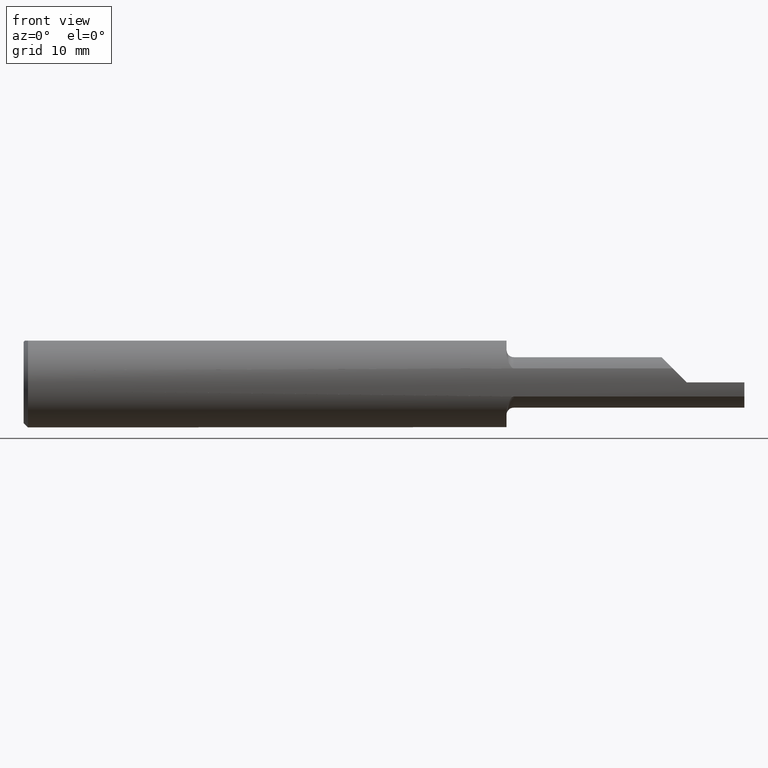
[diagram: clean part render]
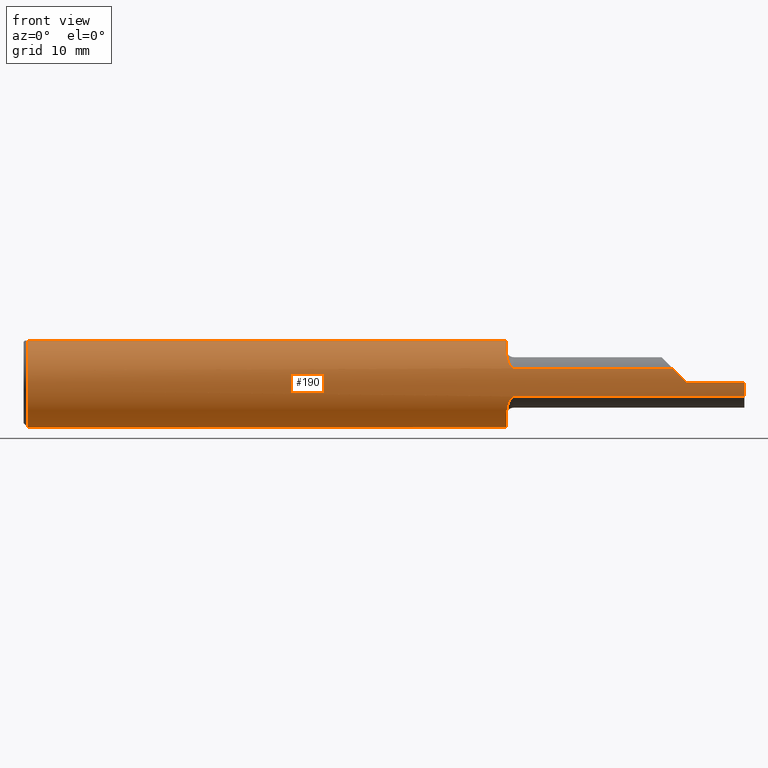
[diagram: same view with one face highlighted and labeled with its STEP entity id]
A machine part, front view. The second image highlights one B-rep face of the part: STEP entity #190.
In plain terms, the highlighted cylindrical surface (partial cylindrical patch) has radius 3.9649 mm, axis along (-1, -0, -0).
Its self-contained STEP definition (entity closure, byte-faithful):
#1 = DIRECTION ( 'NONE',  ( 0.000000000000000000, 0.000000000000000000, -1.000000000000000000 ) ) ;
#5 = ORIENTED_EDGE ( 'NONE', *, *, #807, .T. ) ;
#6 = AXIS2_PLACEMENT_3D ( 'NONE', #224, #498, #1 ) ;
#9 = DIRECTION ( 'NONE',  ( -1.000000000000000000, -0.000000000000000000, -0.000000000000000000 ) ) ;
#11 = ORIENTED_EDGE ( 'NONE', *, *, #45, .F. ) ;
#23 = CARTESIAN_POINT ( 'NONE',  ( 1.693177178722074183, -0.1472468593966860251, -0.05183574833930117143 ) ) ;
#27 = CARTESIAN_POINT ( 'NONE',  ( 1.690079856500521727, -0.1460410296156850751, 0.05517908519247215204 ) ) ;
#40 = ORIENTED_EDGE ( 'NONE', *, *, #284, .T. ) ;
#45 = EDGE_CURVE ( 'NONE', #175, #474, #919, .T. ) ;
#53 = DIRECTION ( 'NONE',  ( 1.000000000000000000, 0.000000000000000000, 0.000000000000000000 ) ) ;
#54 = ORIENTED_EDGE ( 'NONE', *, *, #639, .T. ) ;
#74 = DIRECTION ( 'NONE',  ( -1.000000000000000000, -0.000000000000000000, -0.000000000000000000 ) ) ;
#75 = ORIENTED_EDGE ( 'NONE', *, *, #632, .F. ) ;
#77 = CARTESIAN_POINT ( 'NONE',  ( 2.251340690561190794, -0.1483222222222220776, 0.04865930943880889675 ) ) ;
#81 = CARTESIAN_POINT ( 'NONE',  ( 2.058749999999999858, -0.1483222222222221054, 0.04865930943880881349 ) ) ;
#82 = AXIS2_PLACEMENT_3D ( 'NONE', #917, #53, #344 ) ;
#106 = CARTESIAN_POINT ( 'NONE',  ( 1.677226674330530409, -0.1304125201963227398, 0.08600364038630173291 ) ) ;
#109 = ORIENTED_EDGE ( 'NONE', *, *, #814, .F. ) ;
#123 = CARTESIAN_POINT ( 'NONE',  ( 1.699999999999999956, -0.1483222222222221054, -0.04865930943880881349 ) ) ;
#147 = EDGE_CURVE ( 'NONE', #474, #829, #426, .T. ) ;
#153 = ORIENTED_EDGE ( 'NONE', *, *, #641, .T. ) ;
#170 = EDGE_LOOP ( 'NONE', ( #886, #11, #391, #40, #309, #5, #75, #54, #815, #153, #464, #109, #192 ) ) ;
#174 = CARTESIAN_POINT ( 'NONE',  ( 2.251340690561190794, -0.1483222222222220776, 0.04865930943880889675 ) ) ;
#175 = VERTEX_POINT ( 'NONE', #241 ) ;
#179 = CARTESIAN_POINT ( 'NONE',  ( 1.675000000000000044, -0.1194473140465537458, 0.1006887116398776927 ) ) ;
#186 = CARTESIAN_POINT ( 'NONE',  ( 1.684139466932422780, -0.1419217972574611242, -0.06523403485447477890 ) ) ;
#188 = DIRECTION ( 'NONE',  ( 0.000000000000000000, 0.000000000000000000, -1.000000000000000000 ) ) ;
#190 = ADVANCED_FACE ( 'NONE', ( #442 ), #866, .T. ) ;
#192 = ORIENTED_EDGE ( 'NONE', *, *, #379, .T. ) ;
#195 = CARTESIAN_POINT ( 'NONE',  ( 1.675465807751463032, -0.1232996061929553383, -0.09592304639536579358 ) ) ;
#208 = EDGE_CURVE ( 'NONE', #555, #547, #293, .T. ) ;
#211 = B_SPLINE_CURVE_WITH_KNOTS ( 'NONE', 3,
 ( #261, #536, #195, #328, #473, #603, #186, #888, #762, #23, #319, #599, #246, #527 ),
 .UNSPECIFIED., .F., .F.,
 ( 4, 2, 2, 2, 2, 2, 4 ),
 ( 0.000000000000000000, 0.0004670506114816671086, 0.0009341012229633342172, 0.001401151834445001380, 0.001634677140185839461, 0.001751439793056258501, 0.001868202445926677542 ),
 .UNSPECIFIED. ) ;
#220 = DIRECTION ( 'NONE',  ( -1.000000000000000000, -0.000000000000000000, -0.000000000000000000 ) ) ;
#224 = CARTESIAN_POINT ( 'NONE',  ( 0.01499999999999970281, 0.000000000000000000, 0.000000000000000000 ) ) ;
#228 = VERTEX_POINT ( 'NONE', #451 ) ;
#231 = DIRECTION ( 'NONE',  ( 0.000000000000000000, 0.000000000000000000, -1.000000000000000000 ) ) ;
#241 = CARTESIAN_POINT ( 'NONE',  ( 2.500000000000000000, -0.1560999999999999888, -4.286122238378320280E-17 ) ) ;
#244 = CARTESIAN_POINT ( 'NONE',  ( 1.678505049239872537, -0.1336168144122109880, 0.08092660117083304294 ) ) ;
#246 = CARTESIAN_POINT ( 'NONE',  ( 1.698423634396825088, -0.1483222222223043729, -0.04865930943875496073 ) ) ;
#258 = CARTESIAN_POINT ( 'NONE',  ( 1.696903641765110882, -0.1481407958389036883, 0.04921621718884815200 ) ) ;
#261 = CARTESIAN_POINT ( 'NONE',  ( 1.675000000000000044, -0.1152534391534390523, -0.1052798877435976166 ) ) ;
#284 = EDGE_CURVE ( 'NONE', #882, #552, #524, .T. ) ;
#293 = CIRCLE ( 'NONE', #816, 0.1560999999999999888 ) ;
#309 = ORIENTED_EDGE ( 'NONE', *, *, #569, .F. ) ;
#311 = LINE ( 'NONE', #81, #487 ) ;
#319 = CARTESIAN_POINT ( 'NONE',  ( 1.694290005174225122, -0.1475973241759682975, -0.05082285830523344122 ) ) ;
#326 = CARTESIAN_POINT ( 'NONE',  ( 1.675000000000000044, -0.1152534391534390523, 0.1052798877435976166 ) ) ;
#328 = CARTESIAN_POINT ( 'NONE',  ( 1.677213181498967698, -0.1303732011993284645, -0.08606307062930523832 ) ) ;
#344 = DIRECTION ( 'NONE',  ( 0.000000000000000000, 0.000000000000000000, -1.000000000000000000 ) ) ;
#364 = LINE ( 'NONE', #514, #548 ) ;
#365 = CARTESIAN_POINT ( 'NONE',  ( 2.500000000000000000, 0.000000000000000000, 0.000000000000000000 ) ) ;
#366 = B_SPLINE_CURVE_WITH_KNOTS ( 'NONE', 3,
 ( #618, #818, #258, #539, #900, #27, #669, #805, #884, #244, #106, #827, #179, #735 ),
 .UNSPECIFIED., .F., .F.,
 ( 4, 2, 2, 2, 2, 2, 4 ),
 ( 0.000000000000000000, 0.0001185999505355502887, 0.0002371999010711005774, 0.0004743998021421869517, 0.0009487996042843587245, 0.001423199406426531310, 0.001897599208568703571 ),
 .UNSPECIFIED. ) ;
#369 = VECTOR ( 'NONE', #796, 39.37007874015748143 ) ;
#370 = DIRECTION ( 'NONE',  ( 0.000000000000000000, 0.000000000000000000, 1.000000000000000000 ) ) ;
#379 = EDGE_CURVE ( 'NONE', #826, #829, #211, .T. ) ;
#391 = ORIENTED_EDGE ( 'NONE', *, *, #848, .T. ) ;
#394 = VERTEX_POINT ( 'NONE', #629 ) ;
#399 = CARTESIAN_POINT ( 'NONE',  ( 2.300000000000000266, -0.1560999999999999888, -4.286122238378320280E-17 ) ) ;
#411 = CIRCLE ( 'NONE', #6, 0.1560999999999999888 ) ;
#426 = LINE ( 'NONE', #714, #692 ) ;
#429 = CARTESIAN_POINT ( 'NONE',  ( 0.01499999999999970281, 0.000000000000000000, -0.1560999999999999888 ) ) ;
#431 = CARTESIAN_POINT ( 'NONE',  ( 0.01499999999999970281, 0.000000000000000000, 0.000000000000000000 ) ) ;
#439 = DIRECTION ( 'NONE',  ( 0.000000000000000000, 0.000000000000000000, -1.000000000000000000 ) ) ;
#442 = FACE_OUTER_BOUND ( 'NONE', #170, .T. ) ;
#444 = CARTESIAN_POINT ( 'NONE',  ( 1.675000000000000044, 0.000000000000000000, 0.000000000000000000 ) ) ;
#449 = CARTESIAN_POINT ( 'NONE',  ( 1.675000000000000044, -0.1152534391534390523, -0.1052798877435976166 ) ) ;
#451 = CARTESIAN_POINT ( 'NONE',  ( 0.01499999999999970281, 0.05756040305626777126, 0.1450999999999999790 ) ) ;
#464 = ORIENTED_EDGE ( 'NONE', *, *, #911, .T. ) ;
#473 = CARTESIAN_POINT ( 'NONE',  ( 1.678500940198883518, -0.1336093403149762049, -0.08093965625166069100 ) ) ;
#474 = VERTEX_POINT ( 'NONE', #906 ) ;
#487 = VECTOR ( 'NONE', #585, 39.37007874015748143 ) ;
#498 = DIRECTION ( 'NONE',  ( 1.000000000000000000, -0.000000000000000000, -0.000000000000000000 ) ) ;
#514 = CARTESIAN_POINT ( 'NONE',  ( 2.500000000000000000, 0.05756040305626777126, 0.1450999999999999790 ) ) ;
#520 = CARTESIAN_POINT ( 'NONE',  ( 1.675000000000000044, 0.05756040305626777126, 0.1450999999999999790 ) ) ;
#524 =( BOUNDED_CURVE ( )  B_SPLINE_CURVE ( 3, ( #399, #609, #885, #174 ),
 .UNSPECIFIED., .F., .F. ) 
 B_SPLINE_CURVE_WITH_KNOTS ( ( 4, 4 ),
 ( 4.712388980384687898, 5.029390440538067608 ),
 .UNSPECIFIED. ) 
 CURVE ( )  GEOMETRIC_REPRESENTATION_ITEM ( )  RATIONAL_B_SPLINE_CURVE ( ( 1.000000000000000000, 0.9916433564879546525, 0.9916433564879546525, 1.000000000000000000 ) ) 
 REPRESENTATION_ITEM ( '' )  );
#525 = CARTESIAN_POINT ( 'NONE',  ( 1.675000000000000044, 0.000000000000000000, 0.000000000000000000 ) ) ;
#527 = CARTESIAN_POINT ( 'NONE',  ( 1.699999999999999956, -0.1483222222222221054, -0.04865930943880881349 ) ) ;
#536 = CARTESIAN_POINT ( 'NONE',  ( 1.675000000000000044, -0.1194474109263641698, -0.1006886055822860393 ) ) ;
#539 = CARTESIAN_POINT ( 'NONE',  ( 1.694287531111195344, -0.1475964515845979153, 0.05082537659279134923 ) ) ;
#547 = VERTEX_POINT ( 'NONE', #429 ) ;
#548 = VECTOR ( 'NONE', #643, 39.37007874015748143 ) ;
#552 = VERTEX_POINT ( 'NONE', #77 ) ;
#555 = VERTEX_POINT ( 'NONE', #792 ) ;
#559 = CIRCLE ( 'NONE', #726, 0.1560999999999999888 ) ;
#562 = VERTEX_POINT ( 'NONE', #717 ) ;
#569 = EDGE_CURVE ( 'NONE', #562, #552, #311, .T. ) ;
#578 = AXIS2_PLACEMENT_3D ( 'NONE', #444, #647, #439 ) ;
#585 = DIRECTION ( 'NONE',  ( 1.000000000000000000, 0.000000000000000000, 0.000000000000000000 ) ) ;
#599 = CARTESIAN_POINT ( 'NONE',  ( 1.696912290126283640, -0.1481422360124338700, -0.04921189835249256683 ) ) ;
#603 = CARTESIAN_POINT ( 'NONE',  ( 1.681987253728904230, -0.1393884060084945586, -0.07052344322245762687 ) ) ;
#609 = CARTESIAN_POINT ( 'NONE',  ( 2.283435914893034990, -0.1561000000000000165, 0.01656408510696423184 ) ) ;
#618 = CARTESIAN_POINT ( 'NONE',  ( 1.699999999999999956, -0.1483222222222221054, 0.04865930943880881349 ) ) ;
#629 = CARTESIAN_POINT ( 'NONE',  ( 1.675000000000000044, -0.05756040305626777820, 0.1450999999999999790 ) ) ;
#632 = EDGE_CURVE ( 'NONE', #394, #724, #874, .T. ) ;
#634 = VECTOR ( 'NONE', #220, 39.37007874015748143 ) ;
#639 = EDGE_CURVE ( 'NONE', #394, #555, #860, .T. ) ;
#641 = EDGE_CURVE ( 'NONE', #547, #228, #411, .T. ) ;
#643 = DIRECTION ( 'NONE',  ( 1.000000000000000000, 0.000000000000000000, 0.000000000000000000 ) ) ;
#647 = DIRECTION ( 'NONE',  ( 1.000000000000000000, 0.000000000000000000, 0.000000000000000000 ) ) ;
#669 = CARTESIAN_POINT ( 'NONE',  ( 1.688439982755450153, -0.1450712014230792490, 0.05769777552208708166 ) ) ;
#692 = VECTOR ( 'NONE', #74, 39.37007874015748143 ) ;
#714 = CARTESIAN_POINT ( 'NONE',  ( 2.058749999999999858, -0.1483222222222221054, -0.04865930943880881349 ) ) ;
#717 = CARTESIAN_POINT ( 'NONE',  ( 1.699999999999999956, -0.1483222222222221054, 0.04865930943880881349 ) ) ;
#719 = DIRECTION ( 'NONE',  ( 1.000000000000000000, -0.000000000000000000, -0.000000000000000000 ) ) ;
#724 = VERTEX_POINT ( 'NONE', #326 ) ;
#726 = AXIS2_PLACEMENT_3D ( 'NONE', #525, #746, #188 ) ;
#728 = CARTESIAN_POINT ( 'NONE',  ( 2.300000000000000266, -0.1560999999999999888, -4.286122238378320280E-17 ) ) ;
#730 = VERTEX_POINT ( 'NONE', #520 ) ;
#735 = CARTESIAN_POINT ( 'NONE',  ( 1.675000000000000044, -0.1152534391534390523, 0.1052798877435976166 ) ) ;
#746 = DIRECTION ( 'NONE',  ( 1.000000000000000000, 0.000000000000000000, 0.000000000000000000 ) ) ;
#761 = LINE ( 'NONE', #784, #369 ) ;
#762 = CARTESIAN_POINT ( 'NONE',  ( 1.690106298963159892, -0.1460549971287457560, -0.05514197535501665776 ) ) ;
#784 = CARTESIAN_POINT ( 'NONE',  ( 2.500000000000000000, -0.1560999999999999888, -4.286122238378320280E-17 ) ) ;
#792 = CARTESIAN_POINT ( 'NONE',  ( 0.01499999999999970107, -0.05756040305626777126, 0.1450999999999999790 ) ) ;
#796 = DIRECTION ( 'NONE',  ( -1.000000000000000000, -0.000000000000000000, -0.000000000000000000 ) ) ;
#805 = CARTESIAN_POINT ( 'NONE',  ( 1.684127177403178299, -0.1419065933454017880, 0.06526588615221527723 ) ) ;
#807 = EDGE_CURVE ( 'NONE', #562, #724, #366, .T. ) ;
#814 = EDGE_CURVE ( 'NONE', #826, #730, #559, .T. ) ;
#815 = ORIENTED_EDGE ( 'NONE', *, *, #208, .T. ) ;
#816 = AXIS2_PLACEMENT_3D ( 'NONE', #431, #719, #231 ) ;
#818 = CARTESIAN_POINT ( 'NONE',  ( 1.698411864998183640, -0.1483222222222221054, 0.04865930943880879267 ) ) ;
#826 = VERTEX_POINT ( 'NONE', #449 ) ;
#827 = CARTESIAN_POINT ( 'NONE',  ( 1.675472197989095857, -0.1233406036881489615, 0.09587047024759801084 ) ) ;
#829 = VERTEX_POINT ( 'NONE', #123 ) ;
#848 = EDGE_CURVE ( 'NONE', #175, #882, #761, .T. ) ;
#855 = CARTESIAN_POINT ( 'NONE',  ( 2.500000000000000000, -0.05756040305626777126, 0.1450999999999999790 ) ) ;
#856 = AXIS2_PLACEMENT_3D ( 'NONE', #365, #9, #370 ) ;
#860 = LINE ( 'NONE', #855, #634 ) ;
#866 = CYLINDRICAL_SURFACE ( 'NONE', #856, 0.1560999999999999888 ) ;
#874 = CIRCLE ( 'NONE', #578, 0.1560999999999999888 ) ;
#882 = VERTEX_POINT ( 'NONE', #728 ) ;
#884 = CARTESIAN_POINT ( 'NONE',  ( 1.681986249577411829, -0.1393860781203350718, 0.07052722238229833240 ) ) ;
#885 = CARTESIAN_POINT ( 'NONE',  ( 2.267079460017583870, -0.1534855594598297235, 0.03292053998241566137 ) ) ;
#886 = ORIENTED_EDGE ( 'NONE', *, *, #147, .F. ) ;
#888 = CARTESIAN_POINT ( 'NONE',  ( 1.688473108792488686, -0.1450923729584387423, -0.05764485900181665068 ) ) ;
#900 = CARTESIAN_POINT ( 'NONE',  ( 1.693142483653402364, -0.1472352028746813646, 0.05186888255903813333 ) ) ;
#906 = CARTESIAN_POINT ( 'NONE',  ( 2.500000000000000000, -0.1483222222222221054, -0.04865930943880888288 ) ) ;
#911 = EDGE_CURVE ( 'NONE', #228, #730, #364, .T. ) ;
#917 = CARTESIAN_POINT ( 'NONE',  ( 2.500000000000000000, 0.000000000000000000, 0.000000000000000000 ) ) ;
#919 = CIRCLE ( 'NONE', #82, 0.1560999999999999888 ) ;